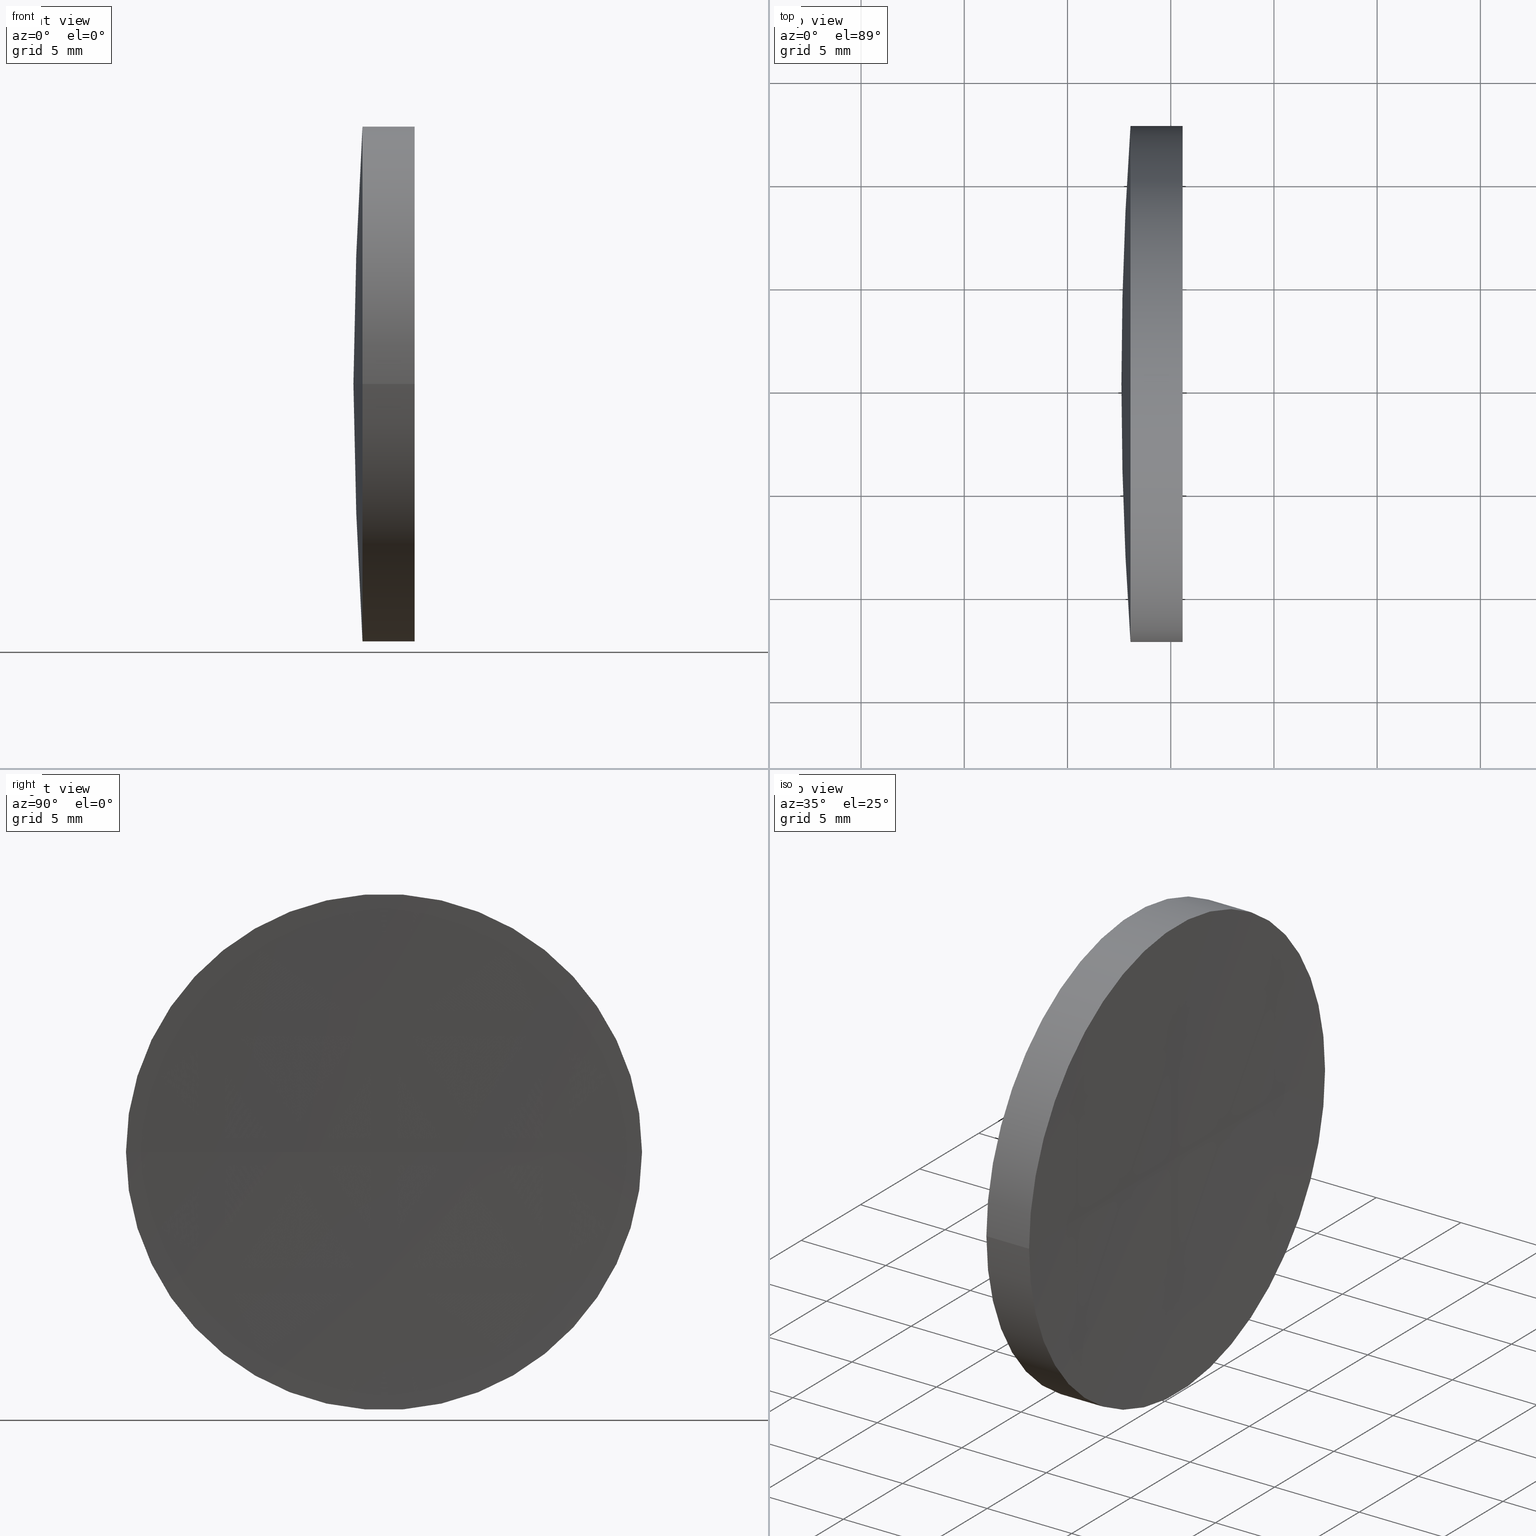
[diagram: canonical four-view strip — front | top / right | iso, engineering-drawing reading convention]
A machine part, canonical four-view strip (front | top / right | iso — engineering-drawing reading convention). The complete STEP part file that produces these views, byte-faithful:
ISO-10303-21;
HEADER;
FILE_DESCRIPTION (( 'STEP AP214' ),
    '1' );
FILE_NAME ('150011.STEP',
    '2019-07-04T06:30:25',
    ( '' ),
    ( '' ),
    'SwSTEP 2.0',
    'SolidWorks 2016',
    '' );
FILE_SCHEMA (( 'AUTOMOTIVE_DESIGN' ));
ENDSEC;

DATA;
#1 = ORIENTED_EDGE ( 'NONE', *, *, #87, .F. ) ;
#2 = UNCERTAINTY_MEASURE_WITH_UNIT (LENGTH_MEASURE( 1.000000000000000100E-005 ), #7, 'distance_accuracy_value', 'NONE');
#3 = COLOUR_RGB ( '',1.000000000000000000, 1.000000000000000000, 1.000000000000000000 ) ;
#4 = CYLINDRICAL_SURFACE ( 'NONE', #82, 12.50000000000004600 ) ;
#5 = PRODUCT_DEFINITION_FORMATION_WITH_SPECIFIED_SOURCE ( '�κ�', '', #154, .NOT_KNOWN. ) ;
#6 = VECTOR ( 'NONE', #80, 1000.000000000000000 ) ;
#7 =( LENGTH_UNIT ( ) NAMED_UNIT ( * ) SI_UNIT ( .MILLI., .METRE. ) );
#8 = DIRECTION ( 'NONE',  ( -0.0000000000000000000, 0.0000000000000000000, 1.000000000000000000 ) ) ;
#9 = DIRECTION ( 'NONE',  ( 0.0000000000000000000, 0.0000000000000000000, -1.000000000000000000 ) ) ;
#10 = SPHERICAL_SURFACE ( 'NONE', #100, 178.0000000000000600 ) ;
#11 = VECTOR ( 'NONE', #44, 1000.000000000000000 ) ;
#12 = AXIS2_PLACEMENT_3D ( 'NONE', #52, #81, #26 ) ;
#13 = EDGE_CURVE ( 'NONE', #107, #59, #84, .T. ) ;
#14 =( GEOMETRIC_REPRESENTATION_CONTEXT ( 3 ) GLOBAL_UNCERTAINTY_ASSIGNED_CONTEXT ( ( #124 ) ) GLOBAL_UNIT_ASSIGNED_CONTEXT ( ( #127, #169, #139 ) ) REPRESENTATION_CONTEXT ( 'NONE', 'WORKASPACE' ) );
#15 = PRESENTATION_STYLE_ASSIGNMENT (( #172 ) ) ;
#16 = VERTEX_POINT ( 'NONE', #128 ) ;
#17 = SURFACE_SIDE_STYLE ('',( #33 ) ) ;
#18 = SURFACE_STYLE_USAGE ( .BOTH. , #43 ) ;
#19 = ORIENTED_EDGE ( 'NONE', *, *, #49, .T. ) ;
#20 = FILL_AREA_STYLE_COLOUR ( '', #105 ) ;
#21 = DIRECTION ( 'NONE',  ( -0.0000000000000000000, 0.0000000000000000000, -1.000000000000000000 ) ) ;
#22 = SPHERICAL_SURFACE ( 'NONE', #120, 178.0000000000000600 ) ;
#23 = EDGE_CURVE ( 'NONE', #16, #178, #99, .T. ) ;
#24 = SHAPE_DEFINITION_REPRESENTATION ( #146, #188 ) ;
#25 = PRODUCT_RELATED_PRODUCT_CATEGORY ( 'part', '', ( #154 ) ) ;
#26 = DIRECTION ( 'NONE',  ( 6.918714320472516000E-016, -1.000000000000000000, 0.0000000000000000000 ) ) ;
#27 = EDGE_CURVE ( 'NONE', #171, #178, #79, .T. ) ;
#28 = DIRECTION ( 'NONE',  ( -1.000000000000000000, -6.937607244762875000E-016, -0.0000000000000000000 ) ) ;
#29 = AXIS2_PLACEMENT_3D ( 'NONE', #123, #168, #74 ) ;
#30 = DIRECTION ( 'NONE',  ( 1.110223024625156100E-015, -1.000000000000000000, 0.0000000000000000000 ) ) ;
#31 = ORIENTED_EDGE ( 'NONE', *, *, #110, .T. ) ;
#32 =( NAMED_UNIT ( * ) SI_UNIT ( $, .STERADIAN. ) SOLID_ANGLE_UNIT ( ) );
#33 = SURFACE_STYLE_FILL_AREA ( #76 ) ;
#34 = ORIENTED_EDGE ( 'NONE', *, *, #23, .F. ) ;
#35 = DIRECTION ( 'NONE',  ( 1.110223024625152400E-015, -1.000000000000000000, 0.0000000000000000000 ) ) ;
#36 = DIRECTION ( 'NONE',  ( -1.000000000000000000, -6.937607244762875000E-016, -0.0000000000000000000 ) ) ;
#37 = CARTESIAN_POINT ( 'NONE',  ( 115.9444912979631800, 52.71684047094028400, 0.0000000000000000000 ) ) ;
#38 = CIRCLE ( 'NONE', #180, 481.4000000000000300 ) ;
#39 = MECHANICAL_DESIGN_GEOMETRIC_PRESENTATION_REPRESENTATION (  '', ( #151 ), #163 ) ;
#40 = PRODUCT_DEFINITION_CONTEXT ( 'detailed design', #157, 'design' ) ;
#41 = LINE ( 'NONE', #161, #6 ) ;
#42 = ORIENTED_EDGE ( 'NONE', *, *, #49, .F. ) ;
#43 = SURFACE_SIDE_STYLE ('',( #142 ) ) ;
#44 = DIRECTION ( 'NONE',  ( -1.000000000000000000, -6.937607244762875000E-016, -0.0000000000000000000 ) ) ;
#45 = DIRECTION ( 'NONE',  ( -6.237208003512113900E-016, 1.000000000000000000, 0.0000000000000000000 ) ) ;
#46 = CARTESIAN_POINT ( 'NONE',  ( 300.6121936984948200, 65.21684047094029800, 0.0000000000000000000 ) ) ;
#47 =( NAMED_UNIT ( * ) PLANE_ANGLE_UNIT ( ) SI_UNIT ( $, .RADIAN. ) );
#48 = ORIENTED_EDGE ( 'NONE', *, *, #87, .T. ) ;
#49 = EDGE_CURVE ( 'NONE', #59, #55, #38, .T. ) ;
#50 = PRESENTATION_LAYER_ASSIGNMENT (  '', '', ( #89 ) ) ;
#51 = DIRECTION ( 'NONE',  ( 1.110223024625156100E-015, -1.000000000000000000, 0.0000000000000000000 ) ) ;
#52 = CARTESIAN_POINT ( 'NONE',  ( 606.8121936984948700, 65.21684047094143500, 0.0000000000000000000 ) ) ;
#53 = ORIENTED_EDGE ( 'NONE', *, *, #13, .T. ) ;
#54 = DIRECTION ( 'NONE',  ( -1.000000000000000000, 0.0000000000000000000, 0.0000000000000000000 ) ) ;
#55 = VERTEX_POINT ( 'NONE', #106 ) ;
#56 = CYLINDRICAL_SURFACE ( 'NONE', #138, 12.50000000000004600 ) ;
#57 = FILL_AREA_STYLE ('',( #92 ) ) ;
#58 = MECHANICAL_DESIGN_GEOMETRIC_PRESENTATION_REPRESENTATION (  '', ( #89 ), #14 ) ;
#59 = VERTEX_POINT ( 'NONE', #129 ) ;
#60 = DIRECTION ( 'NONE',  ( 6.918714320472516000E-016, -1.000000000000000000, 0.0000000000000000000 ) ) ;
#61 = PRODUCT_CONTEXT ( 'NONE', #141, 'mechanical' ) ;
#62 = DIRECTION ( 'NONE',  ( 0.0000000000000000000, 1.000000000000000000, 1.224646799147353200E-016 ) ) ;
#63 = LINE ( 'NONE', #37, #11 ) ;
#64 = CARTESIAN_POINT ( 'NONE',  ( 115.9444912979631700, 65.21684047094032600, 0.0000000000000000000 ) ) ;
#65 = DIRECTION ( 'NONE',  ( 0.0000000000000000000, -1.000000000000000000, 0.0000000000000000000 ) ) ;
#66 = UNCERTAINTY_MEASURE_WITH_UNIT (LENGTH_MEASURE( 1.000000000000000100E-005 ), #183, 'distance_accuracy_value', 'NONE');
#67 = CARTESIAN_POINT ( 'NONE',  ( 606.8121936984948700, 65.21684047094143500, 0.0000000000000000000 ) ) ;
#68 = ORIENTED_EDGE ( 'NONE', *, *, #156, .F. ) ;
#69 = DIRECTION ( 'NONE',  ( 8.496118506040342700E-032, -1.224646799147353200E-016, 1.000000000000000000 ) ) ;
#70 = ORIENTED_EDGE ( 'NONE', *, *, #121, .F. ) ;
#71 = ADVANCED_FACE ( 'NONE', ( #119 ), #4, .T. ) ;
#72 = ORIENTED_EDGE ( 'NONE', *, *, #78, .F. ) ;
#73 = SPHERICAL_SURFACE ( 'NONE', #91, 481.4000000000000300 ) ;
#74 = DIRECTION ( 'NONE',  ( 1.000000000000000000, 0.0000000000000000000, 0.0000000000000000000 ) ) ;
#75 = ORIENTED_EDGE ( 'NONE', *, *, #156, .T. ) ;
#76 = FILL_AREA_STYLE ('',( #20 ) ) ;
#77 = CARTESIAN_POINT ( 'NONE',  ( 122.6121936984947900, 65.21684047094018400, 0.0000000000000000000 ) ) ;
#78 = EDGE_CURVE ( 'NONE', #171, #16, #133, .T. ) ;
#79 = CIRCLE ( 'NONE', #174, 178.0000000000000600 ) ;
#80 = DIRECTION ( 'NONE',  ( -1.000000000000000000, -6.937607244762875000E-016, -0.0000000000000000000 ) ) ;
#81 = DIRECTION ( 'NONE',  ( -0.0000000000000000000, 0.0000000000000000000, 1.000000000000000000 ) ) ;
#82 = AXIS2_PLACEMENT_3D ( 'NONE', #64, #93, #190 ) ;
#83 = CLOSED_SHELL ( 'NONE', ( #136, #164, #192, #135, #118, #71 ) ) ;
#84 = CIRCLE ( 'NONE', #147, 12.50000000000007300 ) ;
#85 = FACE_OUTER_BOUND ( 'NONE', #101, .T. ) ;
#86 = SPHERICAL_SURFACE ( 'NONE', #12, 481.4000000000000300 ) ;
#87 = EDGE_CURVE ( 'NONE', #107, #55, #149, .T. ) ;
#88 = CARTESIAN_POINT ( 'NONE',  ( 123.0516406468668300, 77.71684047094032600, 0.0000000000000000000 ) ) ;
#89 = STYLED_ITEM ( 'NONE', ( #130 ), #188 ) ;
#90 = APPLICATION_PROTOCOL_DEFINITION ( 'draft international standard', 'automotive_design', 1998, #141 ) ;
#91 = AXIS2_PLACEMENT_3D ( 'NONE', #104, #184, #60 ) ;
#92 = FILL_AREA_STYLE_COLOUR ( '', #3 ) ;
#93 = DIRECTION ( 'NONE',  ( -1.000000000000000000, -6.937607244762875000E-016, -0.0000000000000000000 ) ) ;
#94 = DIRECTION ( 'NONE',  ( 0.0000000000000000000, -1.000000000000000000, -1.224646799147353200E-016 ) ) ;
#95 = EDGE_LOOP ( 'NONE', ( #34, #186, #191 ) ) ;
#96 = CARTESIAN_POINT ( 'NONE',  ( 606.8121936984948700, 65.21684047094143500, 0.0000000000000000000 ) ) ;
#97 = DIRECTION ( 'NONE',  ( -0.0000000000000000000, 0.0000000000000000000, -1.000000000000000000 ) ) ;
#98 = PRODUCT_DEFINITION ( 'δ֪', '', #5, #40 ) ;
#99 = CIRCLE ( 'NONE', #165, 178.0000000000000600 ) ;
#100 = AXIS2_PLACEMENT_3D ( 'NONE', #46, #21, #45 ) ;
#101 = EDGE_LOOP ( 'NONE', ( #140, #166, #167 ) ) ;
#102 =( NAMED_UNIT ( * ) SI_UNIT ( $, .STERADIAN. ) SOLID_ANGLE_UNIT ( ) );
#103 = EDGE_LOOP ( 'NONE', ( #152, #19, #1 ) ) ;
#104 = CARTESIAN_POINT ( 'NONE',  ( 606.8121936984948700, 65.21684047094143500, 0.0000000000000000000 ) ) ;
#105 = COLOUR_RGB ( '',1.000000000000000000, 1.000000000000000000, 1.000000000000000000 ) ;
#106 = CARTESIAN_POINT ( 'NONE',  ( 125.4121936984947600, 65.21684047094107900, 0.0000000000000000000 ) ) ;
#107 = VERTEX_POINT ( 'NONE', #113 ) ;
#108 = AXIS2_PLACEMENT_3D ( 'NONE', #160, #36, #175 ) ;
#109 = DIRECTION ( 'NONE',  ( -8.496118506040342700E-032, 1.224646799147353200E-016, -1.000000000000000000 ) ) ;
#110 = EDGE_CURVE ( 'NONE', #59, #107, #126, .T. ) ;
#111 =( GEOMETRIC_REPRESENTATION_CONTEXT ( 3 ) GLOBAL_UNCERTAINTY_ASSIGNED_CONTEXT ( ( #66 ) ) GLOBAL_UNIT_ASSIGNED_CONTEXT ( ( #183, #170, #102 ) ) REPRESENTATION_CONTEXT ( 'NONE', 'WORKASPACE' ) );
#112 = EDGE_LOOP ( 'NONE', ( #42, #117, #48 ) ) ;
#113 = CARTESIAN_POINT ( 'NONE',  ( 125.5745081417628500, 52.71684047094019100, 0.0000000000000000000 ) ) ;
#114 = CARTESIAN_POINT ( 'NONE',  ( 123.0516406468668300, 65.21684047094032600, 0.0000000000000000000 ) ) ;
#115 = AXIS2_PLACEMENT_3D ( 'NONE', #67, #9, #54 ) ;
#116 = DIRECTION ( 'NONE',  ( -6.237208003512113900E-016, 1.000000000000000000, 0.0000000000000000000 ) ) ;
#117 = ORIENTED_EDGE ( 'NONE', *, *, #13, .F. ) ;
#118 = ADVANCED_FACE ( 'NONE', ( #122 ), #86, .F. ) ;
#119 = FACE_OUTER_BOUND ( 'NONE', #162, .T. ) ;
#120 = AXIS2_PLACEMENT_3D ( 'NONE', #189, #97, #116 ) ;
#121 = EDGE_CURVE ( 'NONE', #59, #171, #41, .T. ) ;
#122 = FACE_OUTER_BOUND ( 'NONE', #112, .T. ) ;
#123 = CARTESIAN_POINT ( 'NONE',  ( 0.0000000000000000000, 0.0000000000000000000, 0.0000000000000000000 ) ) ;
#124 = UNCERTAINTY_MEASURE_WITH_UNIT (LENGTH_MEASURE( 1.000000000000000100E-005 ), #127, 'distance_accuracy_value', 'NONE');
#125 = CARTESIAN_POINT ( 'NONE',  ( 123.0516406468668300, 65.21684047094032600, 0.0000000000000000000 ) ) ;
#126 = CIRCLE ( 'NONE', #108, 12.50000000000007300 ) ;
#127 =( LENGTH_UNIT ( ) NAMED_UNIT ( * ) SI_UNIT ( .MILLI., .METRE. ) );
#128 = CARTESIAN_POINT ( 'NONE',  ( 123.0516406468668300, 52.71684047094017700, -1.530808498934191500E-015 ) ) ;
#129 = CARTESIAN_POINT ( 'NONE',  ( 125.5745081417628500, 77.71684047094123600, 1.530808498934208100E-015 ) ) ;
#130 = PRESENTATION_STYLE_ASSIGNMENT (( #18 ) ) ;
#131 = DIRECTION ( 'NONE',  ( -1.000000000000000000, -6.937607244762875000E-016, -0.0000000000000000000 ) ) ;
#132 = FACE_OUTER_BOUND ( 'NONE', #103, .T. ) ;
#133 = CIRCLE ( 'NONE', #176, 12.50000000000000400 ) ;
#134 = AXIS2_PLACEMENT_3D ( 'NONE', #125, #28, #30 ) ;
#135 = ADVANCED_FACE ( 'NONE', ( #145 ), #22, .T. ) ;
#136 = ADVANCED_FACE ( 'NONE', ( #177 ), #56, .T. ) ;
#137 = EDGE_CURVE ( 'NONE', #16, #171, #179, .T. ) ;
#138 = AXIS2_PLACEMENT_3D ( 'NONE', #150, #131, #35 ) ;
#139 =( NAMED_UNIT ( * ) SI_UNIT ( $, .STERADIAN. ) SOLID_ANGLE_UNIT ( ) );
#140 = ORIENTED_EDGE ( 'NONE', *, *, #78, .T. ) ;
#141 = APPLICATION_CONTEXT ( 'automotive_design' ) ;
#142 = SURFACE_STYLE_FILL_AREA ( #57 ) ;
#143 = DIRECTION ( 'NONE',  ( -1.000000000000000000, -6.937607244762875000E-016, -0.0000000000000000000 ) ) ;
#144 = PRESENTATION_LAYER_ASSIGNMENT (  '', '', ( #151 ) ) ;
#145 = FACE_OUTER_BOUND ( 'NONE', #95, .T. ) ;
#146 = PRODUCT_DEFINITION_SHAPE ( 'NONE', 'NONE',  #98 ) ;
#147 = AXIS2_PLACEMENT_3D ( 'NONE', #173, #143, #65 ) ;
#148 = DIRECTION ( 'NONE',  ( -1.000000000000000000, -6.937607244762875000E-016, -0.0000000000000000000 ) ) ;
#149 = CIRCLE ( 'NONE', #115, 481.4000000000000300 ) ;
#150 = CARTESIAN_POINT ( 'NONE',  ( 115.9444912979631700, 65.21684047094032600, 0.0000000000000000000 ) ) ;
#151 = STYLED_ITEM ( 'NONE', ( #15 ), #159 ) ;
#152 = ORIENTED_EDGE ( 'NONE', *, *, #110, .F. ) ;
#153 = ORIENTED_EDGE ( 'NONE', *, *, #137, .F. ) ;
#154 = PRODUCT ( '150011', '150011', '', ( #61 ) ) ;
#155 = ORIENTED_EDGE ( 'NONE', *, *, #121, .T. ) ;
#156 = EDGE_CURVE ( 'NONE', #107, #16, #63, .T. ) ;
#157 = APPLICATION_CONTEXT ( 'automotive_design' ) ;
#158 = DIRECTION ( 'NONE',  ( 1.000000000000000000, 0.0000000000000000000, 0.0000000000000000000 ) ) ;
#159 = MANIFOLD_SOLID_BREP ( '��ת1', #83 ) ;
#160 = CARTESIAN_POINT ( 'NONE',  ( 125.5745081417627900, 65.21684047094032600, 0.0000000000000000000 ) ) ;
#161 = CARTESIAN_POINT ( 'NONE',  ( 115.9444912979631500, 77.71684047094038300, 1.530808498934197200E-015 ) ) ;
#162 = EDGE_LOOP ( 'NONE', ( #70, #31, #75, #72 ) ) ;
#163 =( GEOMETRIC_REPRESENTATION_CONTEXT ( 3 ) GLOBAL_UNCERTAINTY_ASSIGNED_CONTEXT ( ( #2 ) ) GLOBAL_UNIT_ASSIGNED_CONTEXT ( ( #7, #47, #32 ) ) REPRESENTATION_CONTEXT ( 'NONE', 'WORKASPACE' ) );
#164 = ADVANCED_FACE ( 'NONE', ( #132 ), #73, .F. ) ;
#165 = AXIS2_PLACEMENT_3D ( 'NONE', #187, #109, #62 ) ;
#166 = ORIENTED_EDGE ( 'NONE', *, *, #23, .T. ) ;
#167 = ORIENTED_EDGE ( 'NONE', *, *, #27, .F. ) ;
#168 = DIRECTION ( 'NONE',  ( 0.0000000000000000000, 0.0000000000000000000, 1.000000000000000000 ) ) ;
#169 =( NAMED_UNIT ( * ) PLANE_ANGLE_UNIT ( ) SI_UNIT ( $, .RADIAN. ) );
#170 =( NAMED_UNIT ( * ) PLANE_ANGLE_UNIT ( ) SI_UNIT ( $, .RADIAN. ) );
#171 = VERTEX_POINT ( 'NONE', #88 ) ;
#172 = SURFACE_STYLE_USAGE ( .BOTH. , #17 ) ;
#173 = CARTESIAN_POINT ( 'NONE',  ( 125.5745081417627900, 65.21684047094032600, 0.0000000000000000000 ) ) ;
#174 = AXIS2_PLACEMENT_3D ( 'NONE', #185, #8, #158 ) ;
#175 = DIRECTION ( 'NONE',  ( 0.0000000000000000000, -1.000000000000000000, 0.0000000000000000000 ) ) ;
#176 = AXIS2_PLACEMENT_3D ( 'NONE', #114, #148, #51 ) ;
#177 = FACE_OUTER_BOUND ( 'NONE', #182, .T. ) ;
#178 = VERTEX_POINT ( 'NONE', #77 ) ;
#179 = CIRCLE ( 'NONE', #134, 12.50000000000000400 ) ;
#180 = AXIS2_PLACEMENT_3D ( 'NONE', #96, #69, #94 ) ;
#181 = APPLICATION_PROTOCOL_DEFINITION ( 'draft international standard', 'automotive_design', 1998, #157 ) ;
#182 = EDGE_LOOP ( 'NONE', ( #53, #155, #153, #68 ) ) ;
#183 =( LENGTH_UNIT ( ) NAMED_UNIT ( * ) SI_UNIT ( .MILLI., .METRE. ) );
#184 = DIRECTION ( 'NONE',  ( -0.0000000000000000000, 0.0000000000000000000, 1.000000000000000000 ) ) ;
#185 = CARTESIAN_POINT ( 'NONE',  ( 300.6121936984948200, 65.21684047094029800, 0.0000000000000000000 ) ) ;
#186 = ORIENTED_EDGE ( 'NONE', *, *, #137, .T. ) ;
#187 = CARTESIAN_POINT ( 'NONE',  ( 300.6121936984948200, 65.21684047094029800, 0.0000000000000000000 ) ) ;
#188 = ADVANCED_BREP_SHAPE_REPRESENTATION ( '150011', ( #159, #29 ), #111 ) ;
#189 = CARTESIAN_POINT ( 'NONE',  ( 300.6121936984948200, 65.21684047094029800, 0.0000000000000000000 ) ) ;
#190 = DIRECTION ( 'NONE',  ( 1.110223024625152400E-015, -1.000000000000000000, 0.0000000000000000000 ) ) ;
#191 = ORIENTED_EDGE ( 'NONE', *, *, #27, .T. ) ;
#192 = ADVANCED_FACE ( 'NONE', ( #85 ), #10, .T. ) ;
ENDSEC;
END-ISO-10303-21;
